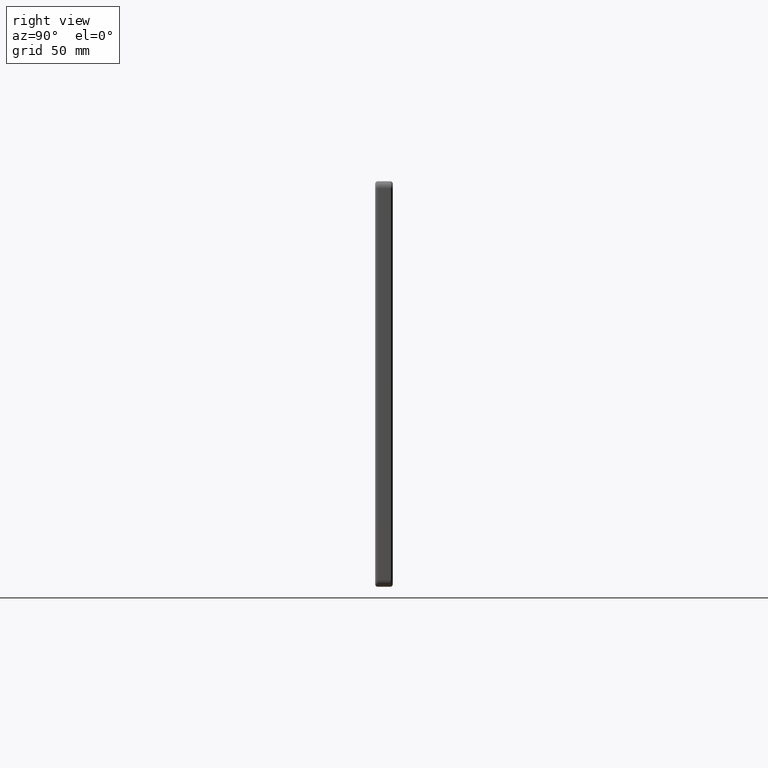
[diagram: clean part render]
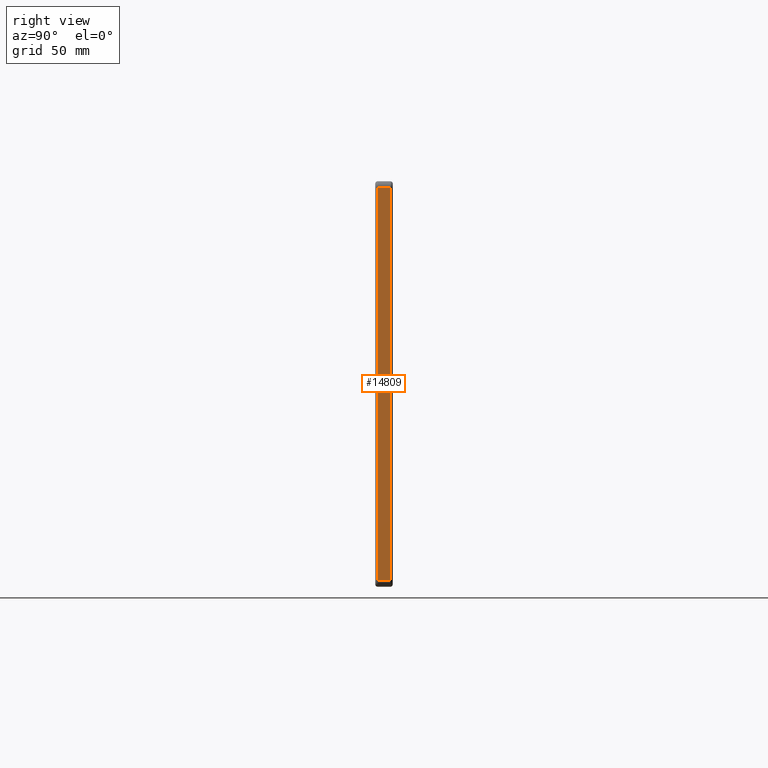
[diagram: same view with one face highlighted and labeled with its STEP entity id]
A machine part, right view. The second image highlights one B-rep face of the part: STEP entity #14809.
In plain terms, the highlighted planar face has unit normal (-1, 0, 0).
Its self-contained STEP definition (entity closure, byte-faithful):
#190 = EDGE_CURVE ( 'NONE', #3197, #15274, #9634, .T. ) ;
#528 = DIRECTION ( 'NONE',  ( 0.0000000000000000000, 0.0000000000000000000, -1.000000000000000000 ) ) ;
#924 = ORIENTED_EDGE ( 'NONE', *, *, #190, .T. ) ;
#2109 = VERTEX_POINT ( 'NONE', #10628 ) ;
#2162 = VECTOR ( 'NONE', #528, 1000.000000000000000 ) ;
#2307 = EDGE_LOOP ( 'NONE', ( #11912, #924, #9941, #4783 ) ) ;
#3197 = VERTEX_POINT ( 'NONE', #11225 ) ;
#3548 = LINE ( 'NONE', #5787, #12712 ) ;
#4661 = VERTEX_POINT ( 'NONE', #4833 ) ;
#4778 = FACE_OUTER_BOUND ( 'NONE', #2307, .T. ) ;
#4783 = ORIENTED_EDGE ( 'NONE', *, *, #6699, .T. ) ;
#4833 = CARTESIAN_POINT ( 'NONE',  ( 225.0000000000000000, 4.500000000000000000, -145.0000000000000000 ) ) ;
#5086 = CARTESIAN_POINT ( 'NONE',  ( 225.0000000000000000, 6.500000000000000000, 145.0000000000000000 ) ) ;
#5787 = CARTESIAN_POINT ( 'NONE',  ( 225.0000000000000000, 6.500000000000000000, -145.0000000000000000 ) ) ;
#5946 = DIRECTION ( 'NONE',  ( -0.0000000000000000000, 1.000000000000000000, -0.0000000000000000000 ) ) ;
#6699 = EDGE_CURVE ( 'NONE', #4661, #2109, #13143, .T. ) ;
#7390 = DIRECTION ( 'NONE',  ( -1.000000000000000000, 0.0000000000000000000, 0.0000000000000000000 ) ) ;
#7698 = CARTESIAN_POINT ( 'NONE',  ( 225.0000000000000000, -4.500000000000000000, -145.0000000000000000 ) ) ;
#8827 = VECTOR ( 'NONE', #9906, 1000.000000000000000 ) ;
#9627 = AXIS2_PLACEMENT_3D ( 'NONE', #14458, #7390, #12120 ) ;
#9634 = LINE ( 'NONE', #11341, #2162 ) ;
#9906 = DIRECTION ( 'NONE',  ( -0.0000000000000000000, -0.0000000000000000000, 1.000000000000000000 ) ) ;
#9941 = ORIENTED_EDGE ( 'NONE', *, *, #12773, .T. ) ;
#10229 = VECTOR ( 'NONE', #13467, 1000.000000000000000 ) ;
#10628 = CARTESIAN_POINT ( 'NONE',  ( 225.0000000000000000, 4.500000000000000000, 145.0000000000000000 ) ) ;
#11225 = CARTESIAN_POINT ( 'NONE',  ( 225.0000000000000000, -4.500000000000000000, 145.0000000000000000 ) ) ;
#11341 = CARTESIAN_POINT ( 'NONE',  ( 225.0000000000000000, -4.500000000000000000, -145.0000000000000000 ) ) ;
#11912 = ORIENTED_EDGE ( 'NONE', *, *, #13253, .T. ) ;
#12120 = DIRECTION ( 'NONE',  ( 0.0000000000000000000, 0.0000000000000000000, 1.000000000000000000 ) ) ;
#12514 = LINE ( 'NONE', #5086, #10229 ) ;
#12712 = VECTOR ( 'NONE', #5946, 1000.000000000000000 ) ;
#12773 = EDGE_CURVE ( 'NONE', #15274, #4661, #3548, .T. ) ;
#13143 = LINE ( 'NONE', #13324, #8827 ) ;
#13253 = EDGE_CURVE ( 'NONE', #2109, #3197, #12514, .T. ) ;
#13324 = CARTESIAN_POINT ( 'NONE',  ( 225.0000000000000000, 4.500000000000000000, 150.0000000000000000 ) ) ;
#13467 = DIRECTION ( 'NONE',  ( 0.0000000000000000000, -1.000000000000000000, 0.0000000000000000000 ) ) ;
#14458 = CARTESIAN_POINT ( 'NONE',  ( 225.0000000000000000, 6.500000000000000000, 150.0000000000000000 ) ) ;
#14621 = PLANE ( 'NONE',  #9627 ) ;
#14809 = ADVANCED_FACE ( 'NONE', ( #4778 ), #14621, .F. ) ;
#15274 = VERTEX_POINT ( 'NONE', #7698 ) ;